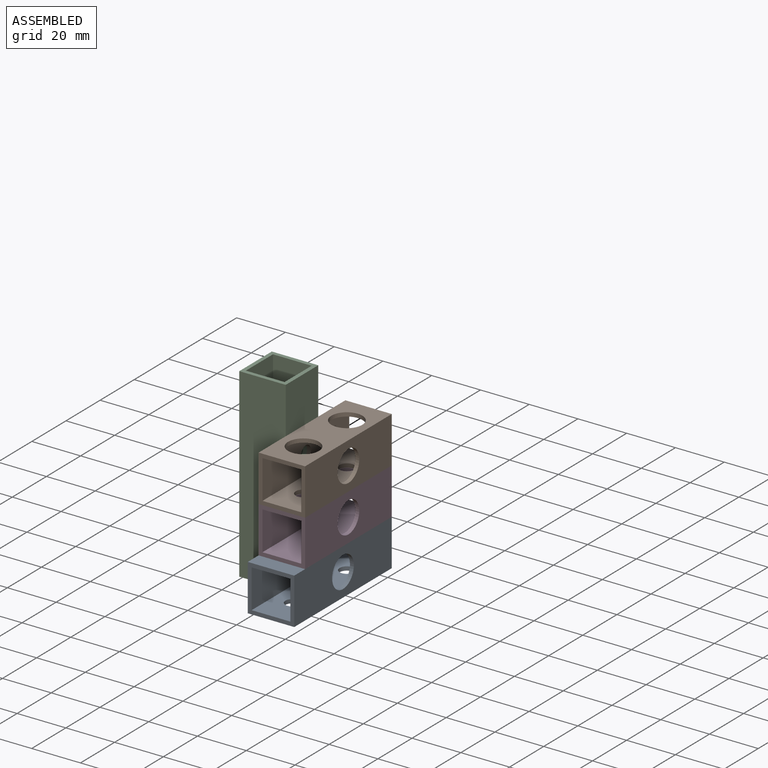
[diagram: assembled view]
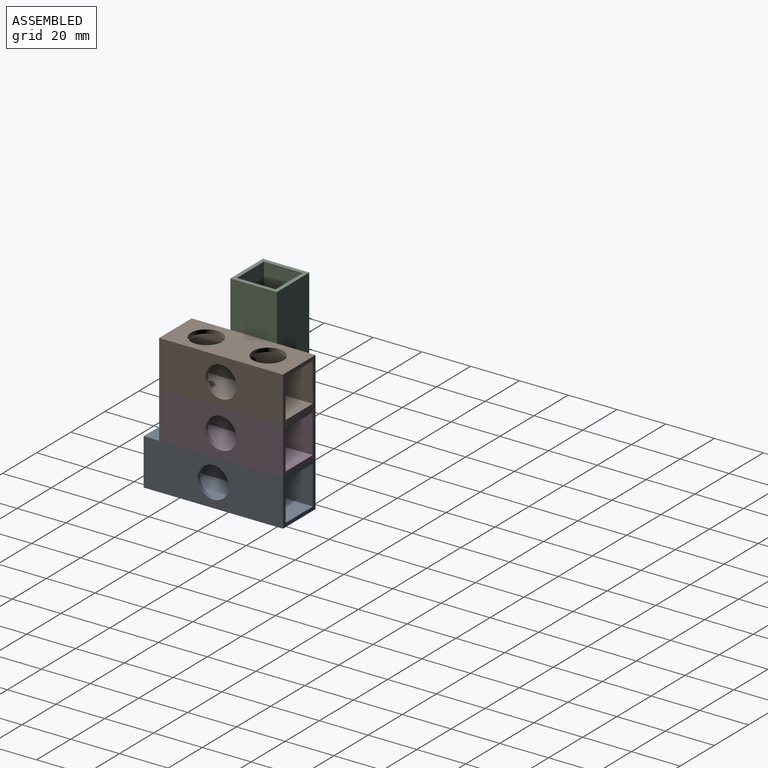
[diagram: assembled view, second angle]
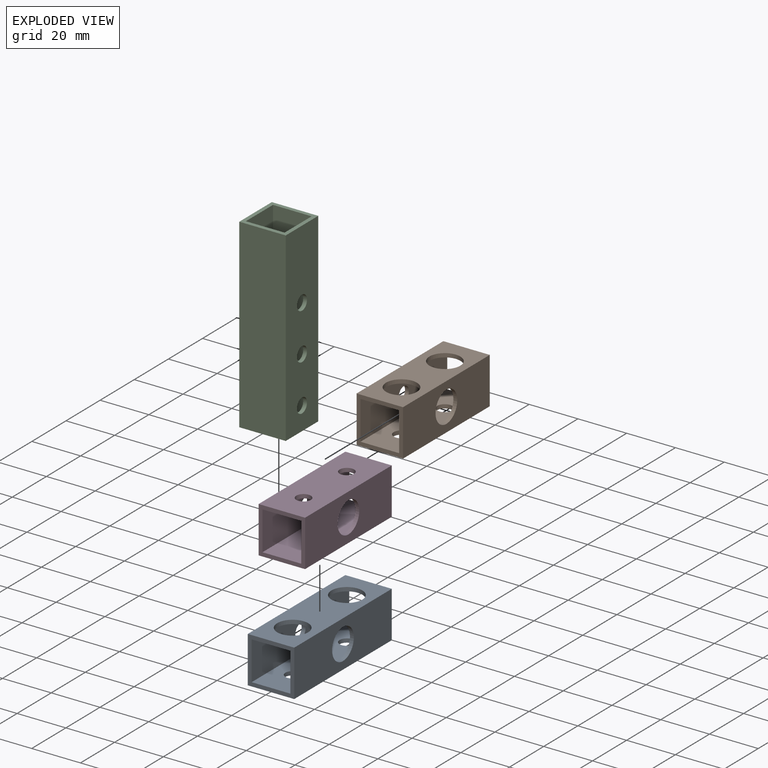
[diagram: exploded view]
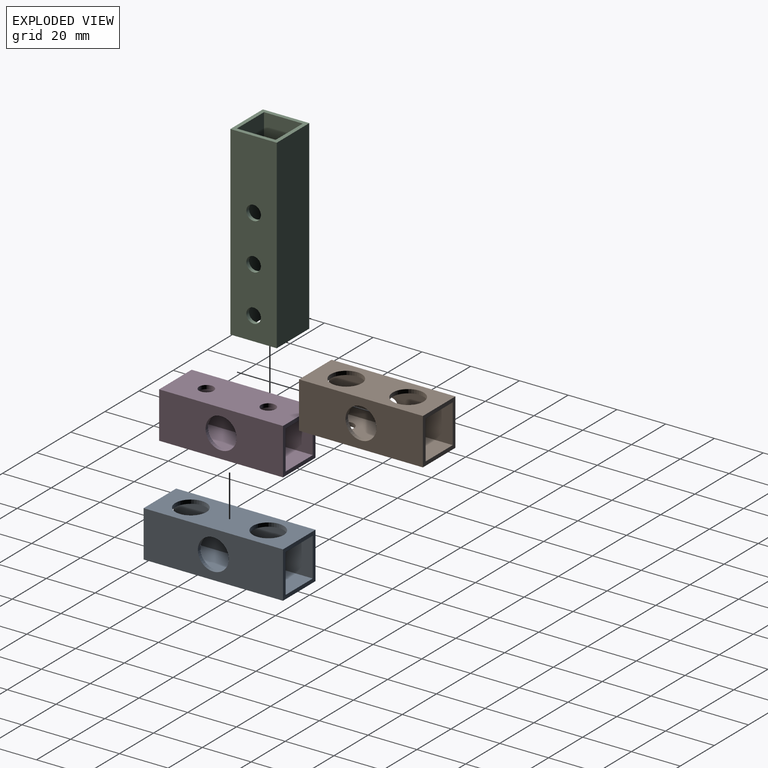
[diagram: exploded view, second angle]
ASSEMBLY  parts=4 mates=8
PART A: 16 faces, bbox 19.1x57.2x19.1 mm
  f0: plane 57.15x19.05mm, normal (0,0,1), area 835.4mm2, adj f1,f7,f8,f9,f12,f13
  f1: plane 57.15x19.05mm, normal (-1,0,0), area 1060.9mm2, adj f0,f2,f8,f9,f15
  f2: plane 57.15x19.05mm, normal (0,0,-1), area 1033mm2, adj f1,f7,f8,f9,f10,f11
  f3: plane 57.15x15.88mm, normal (1,0,0), area 879.4mm2, adj f4,f6,f8,f9,f15
  f4: plane 57.15x15.88mm, normal (0,0,-1), area 653.9mm2, adj f3,f5,f8,f9,f12,f13
  f5: plane 57.15x15.88mm, normal (-1,0,0), area 780.6mm2, adj f4,f6,f8,f9,f14
  f6: plane 57.15x15.88mm, normal (0,0,1), area 851.6mm2, adj f3,f5,f8,f9,f10,f11
  f7: plane 57.15x19.05mm, normal (1,0,0), area 962mm2, adj f0,f2,f8,f9,f14
  f8: plane 19.05x19.05mm, normal (0,-1,0), area 110.9mm2, adj f0,f1,f2,f3,f4,f5,f6,f7
  f9: plane 19.05x19.05mm, normal (0,1,0), area 110.9mm2, adj f0,f1,f2,f3,f4,f5,f6,f7
  f10: cylinder r=2.98mm len=5.95mm, axis (0,0,-1), area 29.7mm2, adj f2,f6
  f11: cylinder r=2.98mm len=5.95mm, axis (0,0,-1), area 29.7mm2, adj f2,f6
  f12: cylinder r=6.35mm len=12.7mm, axis (0,0,1), area 63.3mm2, adj f0,f4
  f13: cylinder r=6.35mm len=12.7mm, axis (0,0,1), area 63.3mm2, adj f0,f4
  f14: cylinder r=6.35mm len=12.7mm, axis (1,0,0), area 63.3mm2, adj f5,f7
  f15: cylinder r=2.98mm len=5.95mm, axis (-1,0,0), area 29.7mm2, adj f1,f3
PART B: 16 faces, bbox 19.1x50.8x19.1 mm
  f0: plane 50.8x19.05mm, normal (0,0,1), area 714.4mm2, adj f1,f7,f8,f9,f12,f13
  f1: plane 50.8x19.05mm, normal (-1,0,0), area 939.9mm2, adj f0,f2,f8,f9,f10
  f2: plane 50.8x19.05mm, normal (0,0,-1), area 904.4mm2, adj f1,f7,f8,f9,f14,f15
  f3: plane 50.8x15.88mm, normal (1,0,0), area 778.6mm2, adj f4,f6,f8,f9,f10
  f4: plane 50.8x15.88mm, normal (0,0,-1), area 553.1mm2, adj f3,f5,f8,f9,f12,f13
  f5: plane 50.8x15.88mm, normal (-1,0,0), area 679.8mm2, adj f4,f6,f8,f9,f11
  f6: plane 50.8x15.88mm, normal (0,0,1), area 743.1mm2, adj f3,f5,f8,f9,f14,f15
  f7: plane 50.8x19.05mm, normal (1,0,0), area 841.1mm2, adj f0,f2,f8,f9,f11
  f8: plane 19.05x19.05mm, normal (0,-1,0), area 110.9mm2, adj f0,f1,f2,f3,f4,f5,f6,f7
  f9: plane 19.05x19.05mm, normal (0,1,0), area 110.9mm2, adj f0,f1,f2,f3,f4,f5,f6,f7
  f10: cylinder r=2.98mm len=5.95mm, axis (-1,0,0), area 29.7mm2, adj f1,f3
  f11: cylinder r=6.35mm len=12.7mm, axis (1,0,0), area 63.3mm2, adj f5,f7
  f12: cylinder r=6.35mm len=12.7mm, axis (0,0,1), area 63.3mm2, adj f0,f4
  f13: cylinder r=6.35mm len=12.7mm, axis (0,0,1), area 63.3mm2, adj f0,f4
  f14: cylinder r=3.17mm len=6.35mm, axis (0,0,-1), area 31.7mm2, adj f2,f6
  f15: cylinder r=3.17mm len=6.35mm, axis (0,0,-1), area 31.7mm2, adj f2,f6
PART C: 16 faces, bbox 19.1x76.2x19.1 mm
  f0: plane 76.2x19.05mm, normal (0,0,1), area 1451.6mm2, adj f1,f7,f8,f9
  f1: plane 76.2x19.05mm, normal (-1,0,0), area 1071.6mm2, adj f0,f2,f8,f9,f13,f14,f15
  f2: plane 76.2x19.05mm, normal (0,0,-1), area 1451.6mm2, adj f1,f7,f8,f9
  f3: plane 76.2x15.88mm, normal (1,0,0), area 829.6mm2, adj f4,f6,f8,f9,f13,f14,f15
  f4: plane 76.2x15.88mm, normal (0,0,-1), area 1209.7mm2, adj f3,f5,f8,f9
  f5: plane 76.2x15.88mm, normal (-1,0,0), area 1126.2mm2, adj f4,f6,f8,f9,f10,f11,f12
  f6: plane 76.2x15.88mm, normal (0,0,1), area 1209.7mm2, adj f3,f5,f8,f9
  f7: plane 76.2x19.05mm, normal (1,0,0), area 1368.1mm2, adj f0,f2,f8,f9,f10,f11,f12
  f8: plane 19.05x19.05mm, normal (0,-1,0), area 110.9mm2, adj f0,f1,f2,f3,f4,f5,f6,f7
  f9: plane 19.05x19.05mm, normal (0,1,0), area 110.9mm2, adj f0,f1,f2,f3,f4,f5,f6,f7
  f10: cylinder r=2.98mm len=5.95mm, axis (1,0,0), area 29.7mm2, adj f5,f7
  f11: cylinder r=2.98mm len=5.95mm, axis (1,0,0), area 29.7mm2, adj f5,f7
  f12: cylinder r=2.98mm len=5.95mm, axis (1,0,0), area 29.7mm2, adj f5,f7
  f13: cylinder r=6.35mm len=12.7mm, axis (-1,0,0), area 63.3mm2, adj f1,f3
  f14: cylinder r=6.35mm len=12.7mm, axis (-1,0,0), area 63.3mm2, adj f1,f3
  f15: cylinder r=6.35mm len=12.7mm, axis (-1,0,0), area 63.3mm2, adj f1,f3
PART D: 14 faces, bbox 19.1x50.8x19.1 mm
  f0: plane 50.8x19.05mm, normal (0,0,1), area 912.1mm2, adj f1,f7,f8,f9,f12,f13
  f1: plane 50.8x19.05mm, normal (-1,0,0), area 939.9mm2, adj f0,f2,f8,f9,f10
  f2: plane 50.8x19.05mm, normal (0,0,-1), area 967.7mm2, adj f1,f7,f8,f9
  f3: plane 50.8x15.88mm, normal (1,0,0), area 778.6mm2, adj f4,f6,f8,f9,f10
  f4: plane 50.8x15.88mm, normal (0,0,-1), area 750.8mm2, adj f3,f5,f8,f9,f12,f13
  f5: plane 50.8x15.88mm, normal (-1,0,0), area 679.8mm2, adj f4,f6,f8,f9,f11
  f6: plane 50.8x15.88mm, normal (0,0,1), area 806.5mm2, adj f3,f5,f8,f9
  f7: plane 50.8x19.05mm, normal (1,0,0), area 841.1mm2, adj f0,f2,f8,f9,f11
  f8: plane 19.05x19.05mm, normal (0,-1,0), area 110.9mm2, adj f0,f1,f2,f3,f4,f5,f6,f7
  f9: plane 19.05x19.05mm, normal (0,1,0), area 110.9mm2, adj f0,f1,f2,f3,f4,f5,f6,f7
  f10: cylinder r=2.98mm len=5.95mm, axis (-1,0,0), area 29.7mm2, adj f1,f3
  f11: cylinder r=6.35mm len=12.7mm, axis (1,0,0), area 63.3mm2, adj f5,f7
  f12: cylinder r=2.98mm len=5.95mm, axis (0,0,1), area 29.7mm2, adj f0,f4
  f13: cylinder r=2.98mm len=5.95mm, axis (0,0,1), area 29.7mm2, adj f0,f4
PLACE A t=(2.11,17.22,1.78)mm
PLACE B t=(2.11,17.22,39.88)mm
PLACE C rot(axis=(-1,0,0),90deg) t=(-16.94,-8.18,-7.75)mm
PLACE D t=(2.11,17.22,20.83)mm
MATE planar B.f9 <-> D.f9  axis (0,1,0) through (10.05,17.22,31.94)mm
MATE planar A.f9 <-> D.f9  axis (0,1,0) through (-5.83,17.22,-6.16)mm
MATE planar A.f15 <-> C.f7  axis (-1,0,0) through (-7.42,-11.36,1.78)mm
MATE parallel C.f0 <-> A.f9  axis (0,1,0) through (-7.42,1.34,-7.75)mm
MATE planar A.f0 <-> D.f2  axis (0,0,1) through (2.11,17.22,11.3)mm
MATE planar B.f1 <-> C.f7  axis (-1,0,0) through (-7.42,17.22,39.88)mm
MATE planar D.f0 <-> B.f2  axis (0,0,1) through (2.11,-8.18,30.35)mm
MATE planar C.f9 <-> A.f2  axis (0,0,-1) through (-9,-16.12,-7.75)mm
